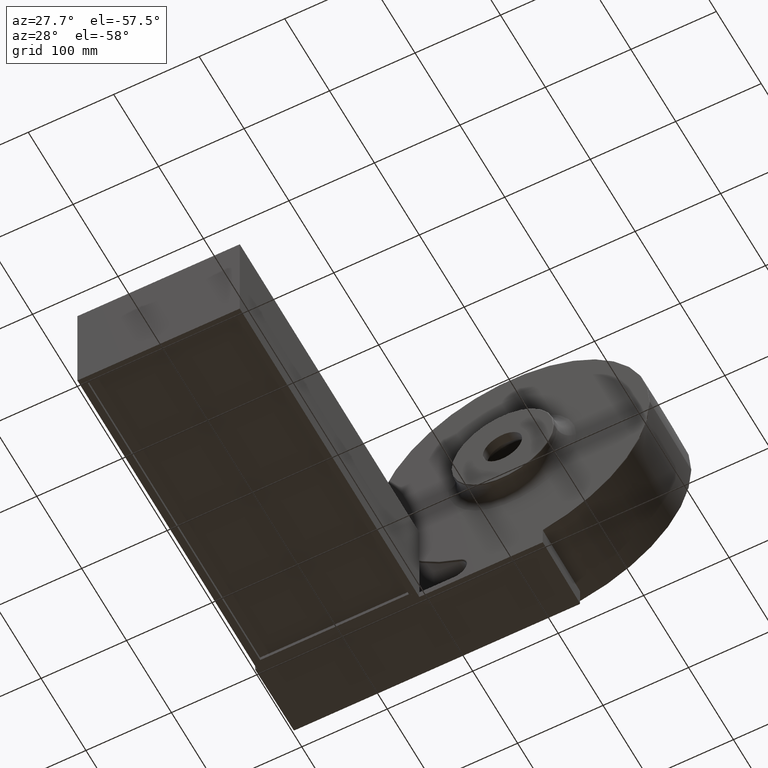
[diagram: clean part render]
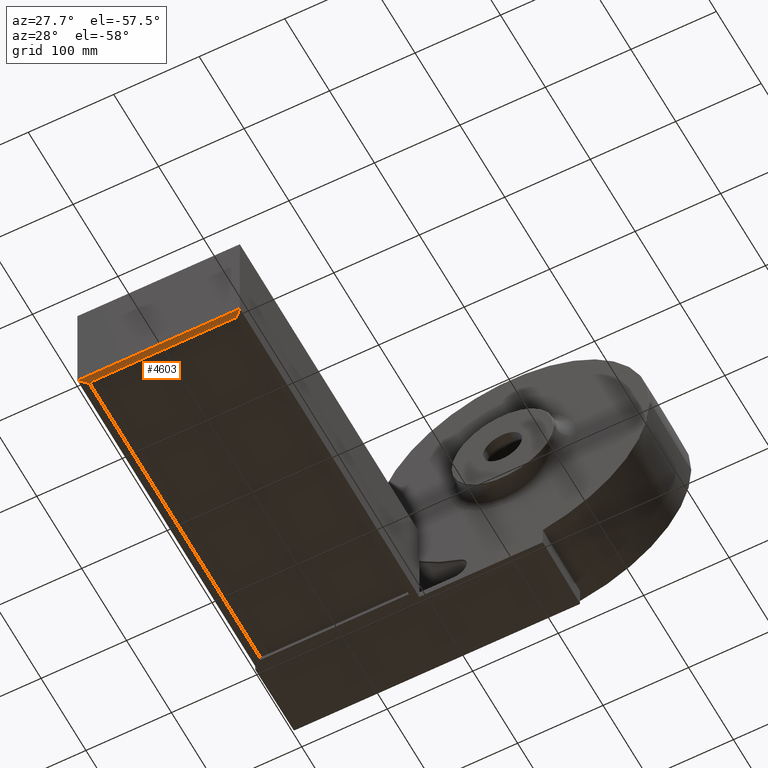
[diagram: same view with one face highlighted and labeled with its STEP entity id]
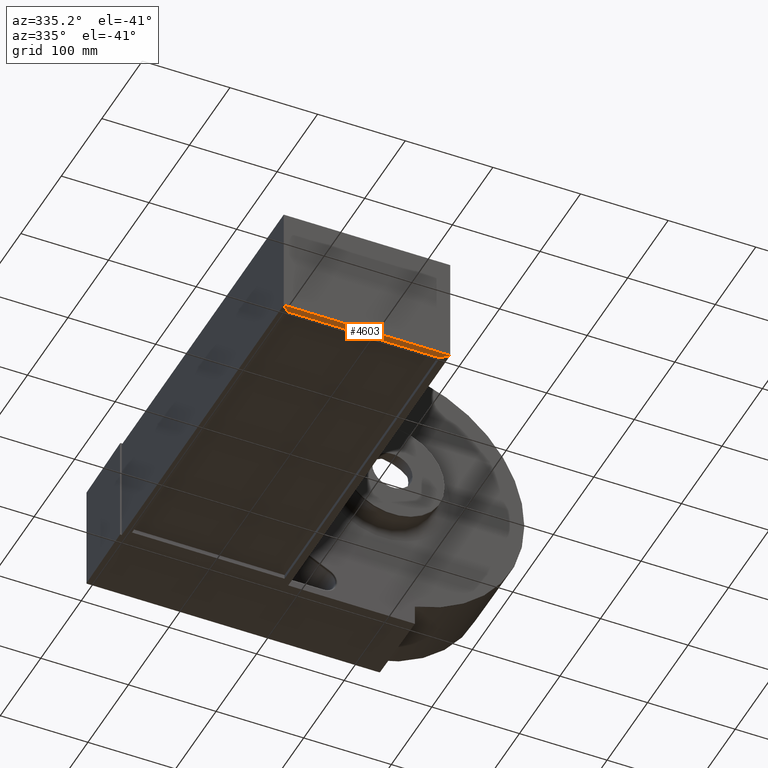
[diagram: same view with one face highlighted and labeled with its STEP entity id]
A machine part, auxiliary view. The second image highlights one B-rep face of the part: STEP entity #4603.
A second angle (auxiliary view) of the same face is appended — the face is thin or edge-on in the first view.
In plain terms, the highlighted planar face has unit normal (0, 0, 1).
Its self-contained STEP definition (entity closure, byte-faithful):
#54 = ORIENTED_EDGE ( 'NONE', *, *, #2294, .T. ) ;
#66 = VECTOR ( 'NONE', #3733, 1000.000000000000000 ) ;
#330 = ORIENTED_EDGE ( 'NONE', *, *, #2836, .T. ) ;
#348 = EDGE_LOOP ( 'NONE', ( #4501, #54, #1550, #330 ) ) ;
#481 = CARTESIAN_POINT ( 'NONE',  ( 8.000000000000015987, 8.000000000000007105, -124.0000000000000000 ) ) ;
#737 = CARTESIAN_POINT ( 'NONE',  ( 181.9999999999999716, 8.000000000000000000, -124.0000000000000000 ) ) ;
#750 = VERTEX_POINT ( 'NONE', #2681 ) ;
#773 = DIRECTION ( 'NONE',  ( 0.7071067811865463515, 0.7071067811865487940, -0.0000000000000000000 ) ) ;
#909 = LINE ( 'NONE', #1676, #1649 ) ;
#1036 = CARTESIAN_POINT ( 'NONE',  ( 3.673940397442051486E-16, 8.000000000000000000, -124.0000000000000000 ) ) ;
#1211 = CARTESIAN_POINT ( 'NONE',  ( 3.673940397442051486E-16, 0.0000000000000000000, -124.0000000000000000 ) ) ;
#1221 = AXIS2_PLACEMENT_3D ( 'NONE', #1036, #4005, #4028 ) ;
#1550 = ORIENTED_EDGE ( 'NONE', *, *, #1930, .F. ) ;
#1557 = VERTEX_POINT ( 'NONE', #1211 ) ;
#1649 = VECTOR ( 'NONE', #2402, 1000.000000000000000 ) ;
#1676 = CARTESIAN_POINT ( 'NONE',  ( 181.9999999999999716, 7.999999999999986677, -124.0000000000000000 ) ) ;
#1714 = VERTEX_POINT ( 'NONE', #1726 ) ;
#1726 = CARTESIAN_POINT ( 'NONE',  ( 190.0000000000000000, 0.0000000000000000000, -124.0000000000000000 ) ) ;
#1856 = CARTESIAN_POINT ( 'NONE',  ( 3.673940397442051486E-16, 0.0000000000000000000, -124.0000000000000000 ) ) ;
#1928 = VERTEX_POINT ( 'NONE', #737 ) ;
#1930 = EDGE_CURVE ( 'NONE', #1928, #750, #2280, .T. ) ;
#2215 = EDGE_CURVE ( 'NONE', #1714, #1557, #4764, .T. ) ;
#2231 = CARTESIAN_POINT ( 'NONE',  ( 3.673940397442051486E-16, 8.000000000000000000, -124.0000000000000000 ) ) ;
#2280 = LINE ( 'NONE', #2231, #66 ) ;
#2294 = EDGE_CURVE ( 'NONE', #1557, #750, #4167, .T. ) ;
#2402 = DIRECTION ( 'NONE',  ( 0.7071067811865463515, -0.7071067811865487940, 0.0000000000000000000 ) ) ;
#2500 = PLANE ( 'NONE',  #1221 ) ;
#2681 = CARTESIAN_POINT ( 'NONE',  ( 8.000000000000008882, 8.000000000000000000, -124.0000000000000000 ) ) ;
#2836 = EDGE_CURVE ( 'NONE', #1928, #1714, #909, .T. ) ;
#3276 = FACE_OUTER_BOUND ( 'NONE', #348, .T. ) ;
#3684 = VECTOR ( 'NONE', #773, 1000.000000000000000 ) ;
#3733 = DIRECTION ( 'NONE',  ( -1.000000000000000000, -0.0000000000000000000, -0.0000000000000000000 ) ) ;
#4005 = DIRECTION ( 'NONE',  ( 0.0000000000000000000, 0.0000000000000000000, 1.000000000000000000 ) ) ;
#4028 = DIRECTION ( 'NONE',  ( 1.000000000000000000, 0.0000000000000000000, -0.0000000000000000000 ) ) ;
#4063 = DIRECTION ( 'NONE',  ( -1.000000000000000000, -0.0000000000000000000, -0.0000000000000000000 ) ) ;
#4167 = LINE ( 'NONE', #481, #3684 ) ;
#4501 = ORIENTED_EDGE ( 'NONE', *, *, #2215, .T. ) ;
#4603 = ADVANCED_FACE ( 'NONE', ( #3276 ), #2500, .F. ) ;
#4624 = VECTOR ( 'NONE', #4063, 1000.000000000000000 ) ;
#4764 = LINE ( 'NONE', #1856, #4624 ) ;